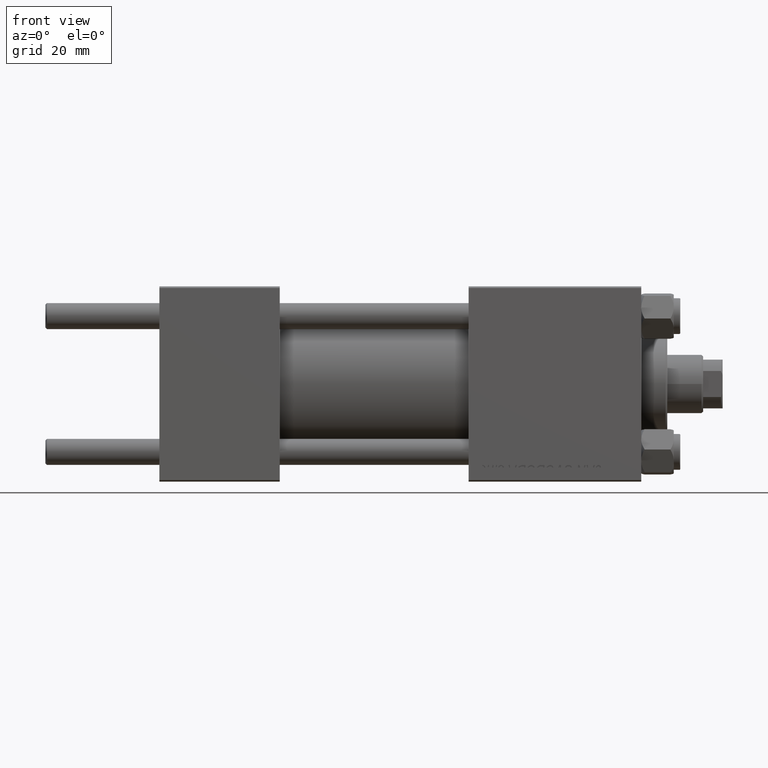
[diagram: clean part render]
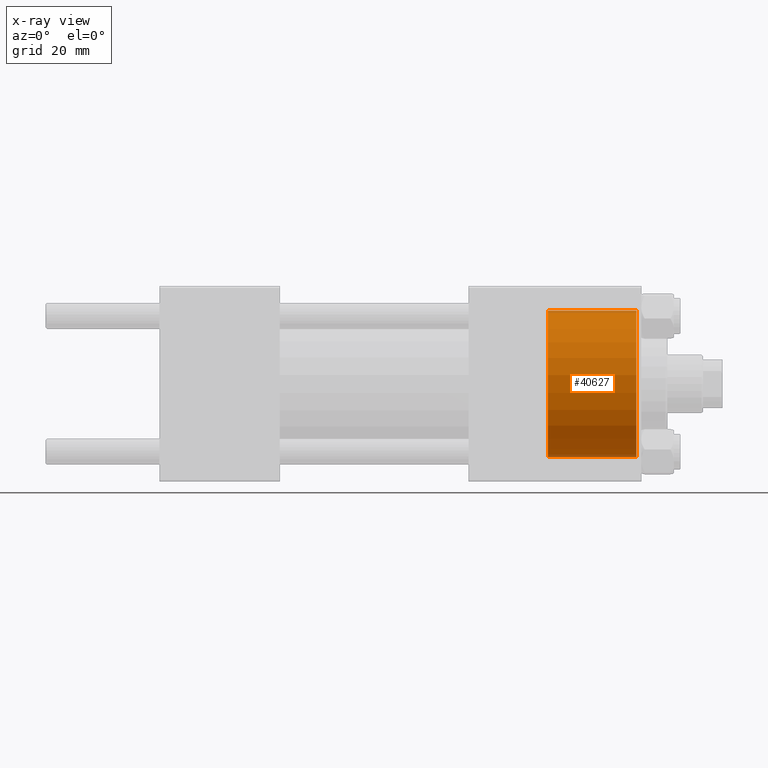
[diagram: x-ray — body ghosted, one internal face saturated and labeled with its STEP entity id]
A machine part, front view, then the same camera in x-ray: the body is ghosted and one INTERNAL B-rep face — a face not visible from any outside direction — is saturated and labeled: STEP entity #40627.
In plain terms, the highlighted cylindrical surface (partial cylindrical patch) has radius 22.5 mm, axis along (1, 0, 0).
Its self-contained STEP definition (entity closure, byte-faithful):
#226 = DIRECTION ( 'NONE',  ( 1.000000000000000000, -0.000000000000000000, -0.000000000000000000 ) ) ;
#2767 = FACE_OUTER_BOUND ( 'NONE', #19853, .T. ) ;
#3186 = CARTESIAN_POINT ( 'NONE',  ( 146.4999999999999432, 0.000000000000000000, 0.000000000000000000 ) ) ;
#3285 = CARTESIAN_POINT ( 'NONE',  ( 119.2999999999999829, 0.000000000000000000, -22.50000000000000355 ) ) ;
#3756 = CARTESIAN_POINT ( 'NONE',  ( 119.2999999999999829, 0.000000000000000000, 0.000000000000000000 ) ) ;
#3849 = VECTOR ( 'NONE', #7333, 1000.000000000000000 ) ;
#6004 = DIRECTION ( 'NONE',  ( 0.000000000000000000, 0.000000000000000000, -1.000000000000000000 ) ) ;
#6513 = EDGE_CURVE ( 'NONE', #22435, #36397, #27476, .T. ) ;
#6542 = AXIS2_PLACEMENT_3D ( 'NONE', #28814, #9810, #6004 ) ;
#7333 = DIRECTION ( 'NONE',  ( 1.000000000000000000, -0.000000000000000000, -0.000000000000000000 ) ) ;
#7970 = DIRECTION ( 'NONE',  ( 1.000000000000000000, -0.000000000000000000, -0.000000000000000000 ) ) ;
#9810 = DIRECTION ( 'NONE',  ( 1.000000000000000000, 0.000000000000000000, 0.000000000000000000 ) ) ;
#12555 = VERTEX_POINT ( 'NONE', #36058 ) ;
#13613 = EDGE_CURVE ( 'NONE', #36397, #12555, #34776, .T. ) ;
#17346 = AXIS2_PLACEMENT_3D ( 'NONE', #3756, #226, #31106 ) ;
#18225 = CYLINDRICAL_SURFACE ( 'NONE', #17346, 22.50000000000000355 ) ;
#18658 = DIRECTION ( 'NONE',  ( 1.000000000000000000, 0.000000000000000000, 0.000000000000000000 ) ) ;
#19853 = EDGE_LOOP ( 'NONE', ( #40153, #37093, #20815, #29529 ) ) ;
#20815 = ORIENTED_EDGE ( 'NONE', *, *, #13613, .T. ) ;
#21563 = EDGE_CURVE ( 'NONE', #23823, #12555, #29639, .T. ) ;
#21713 = CARTESIAN_POINT ( 'NONE',  ( 119.2999999999999829, 0.000000000000000000, -22.50000000000000355 ) ) ;
#22435 = VERTEX_POINT ( 'NONE', #46870 ) ;
#23291 = CARTESIAN_POINT ( 'NONE',  ( 146.4999999999999432, 2.755455298081545172E-15, 22.50000000000000355 ) ) ;
#23823 = VERTEX_POINT ( 'NONE', #21713 ) ;
#27476 = LINE ( 'NONE', #47172, #36150 ) ;
#28814 = CARTESIAN_POINT ( 'NONE',  ( 119.2999999999999829, 0.000000000000000000, 0.000000000000000000 ) ) ;
#29529 = ORIENTED_EDGE ( 'NONE', *, *, #21563, .F. ) ;
#29639 = LINE ( 'NONE', #3285, #3849 ) ;
#31106 = DIRECTION ( 'NONE',  ( 0.000000000000000000, 0.000000000000000000, -1.000000000000000000 ) ) ;
#32689 = EDGE_CURVE ( 'NONE', #22435, #23823, #38855, .T. ) ;
#34776 = CIRCLE ( 'NONE', #43647, 22.50000000000000355 ) ;
#36058 = CARTESIAN_POINT ( 'NONE',  ( 146.4999999999999432, 0.000000000000000000, -22.50000000000000355 ) ) ;
#36150 = VECTOR ( 'NONE', #7970, 1000.000000000000000 ) ;
#36397 = VERTEX_POINT ( 'NONE', #23291 ) ;
#37093 = ORIENTED_EDGE ( 'NONE', *, *, #6513, .T. ) ;
#38855 = CIRCLE ( 'NONE', #6542, 22.50000000000000355 ) ;
#40153 = ORIENTED_EDGE ( 'NONE', *, *, #32689, .F. ) ;
#40627 = ADVANCED_FACE ( 'NONE', ( #2767 ), #18225, .F. ) ;
#41906 = DIRECTION ( 'NONE',  ( 0.000000000000000000, 0.000000000000000000, 1.000000000000000000 ) ) ;
#43647 = AXIS2_PLACEMENT_3D ( 'NONE', #3186, #18658, #41906 ) ;
#46870 = CARTESIAN_POINT ( 'NONE',  ( 119.2999999999999829, 2.755455298081545172E-15, 22.50000000000000355 ) ) ;
#47172 = CARTESIAN_POINT ( 'NONE',  ( 119.2999999999999829, 2.755455298081545172E-15, 22.50000000000000355 ) ) ;